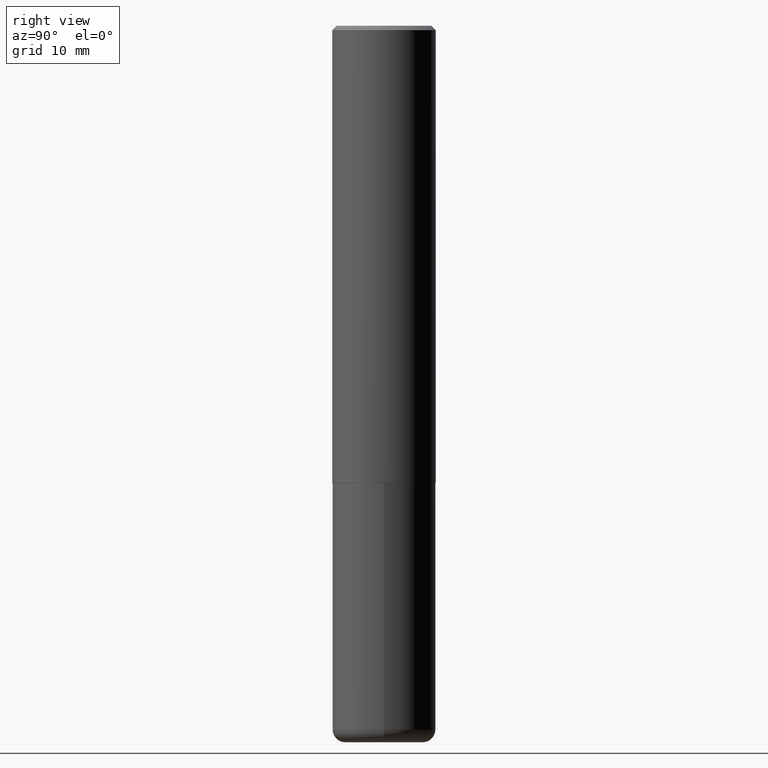
[diagram: clean part render]
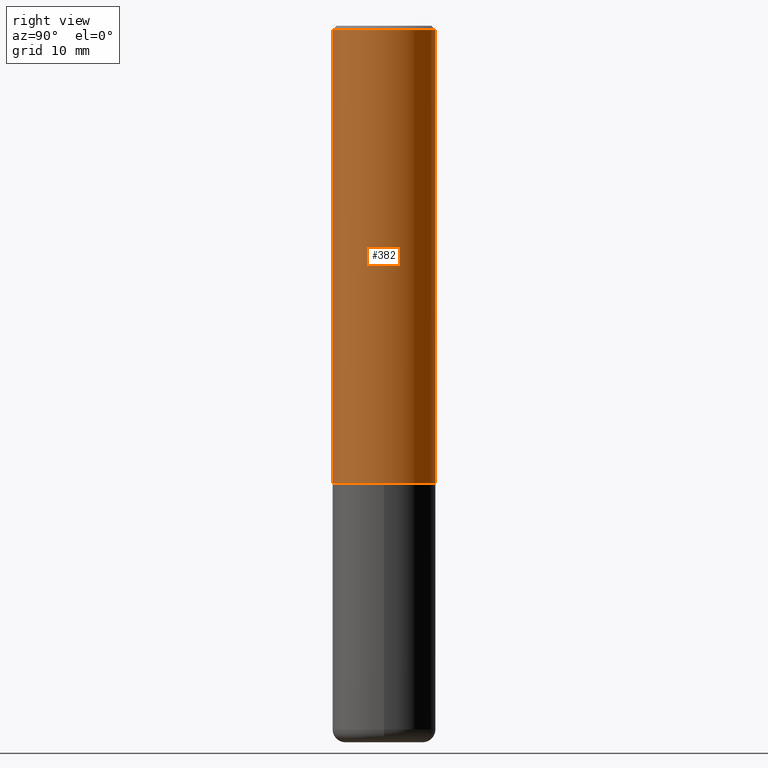
[diagram: same view with one face highlighted and labeled with its STEP entity id]
A machine part, right view. The second image highlights one B-rep face of the part: STEP entity #382.
In plain terms, the highlighted cylindrical surface (partial cylindrical patch) has radius 5.9995 mm, axis along (-0, 0, 1).
Its self-contained STEP definition (entity closure, byte-faithful):
#19 = CIRCLE ( 'NONE', #142, 0.2362000000000002431 ) ;
#20 = AXIS2_PLACEMENT_3D ( 'NONE', #274, #311, #30 ) ;
#29 = CYLINDRICAL_SURFACE ( 'NONE', #20, 0.2362000000000001321 ) ;
#30 = DIRECTION ( 'NONE',  ( -6.982962677686265922E-15, -1.000000000000000000, 3.491916598680790641E-15 ) ) ;
#37 = EDGE_CURVE ( 'NONE', #257, #170, #317, .T. ) ;
#57 = ORIENTED_EDGE ( 'NONE', *, *, #37, .F. ) ;
#68 = DIRECTION ( 'NONE',  ( -2.445164865864999768E-29, 3.491916598680790247E-15, 1.000000000000000000 ) ) ;
#92 = DIRECTION ( 'NONE',  ( -2.445164865864999768E-29, 3.491916598680790247E-15, 1.000000000000000000 ) ) ;
#93 = CARTESIAN_POINT ( 'NONE',  ( 1.649375784469496525E-15, 0.2361999999999999378, -0.02000000000000087472 ) ) ;
#142 = AXIS2_PLACEMENT_3D ( 'NONE', #281, #147, #205 ) ;
#147 = DIRECTION ( 'NONE',  ( -2.445164865864999768E-29, 3.491916598680790247E-15, 1.000000000000000000 ) ) ;
#158 = VECTOR ( 'NONE', #92, 39.37007874015748143 ) ;
#161 = CARTESIAN_POINT ( 'NONE',  ( -1.620449627073635079E-15, -0.2362000000000000766, -0.01999999999999922673 ) ) ;
#164 = EDGE_CURVE ( 'NONE', #170, #337, #302, .T. ) ;
#170 = VERTEX_POINT ( 'NONE', #161 ) ;
#172 = FACE_OUTER_BOUND ( 'NONE', #297, .T. ) ;
#186 = CARTESIAN_POINT ( 'NONE',  ( -1.649375784469496920E-15, -0.2362000000000001321, 8.247907006084031649E-16 ) ) ;
#190 = AXIS2_PLACEMENT_3D ( 'NONE', #327, #68, #247 ) ;
#205 = DIRECTION ( 'NONE',  ( -6.982962677686265922E-15, -1.000000000000000000, 3.469747663417773452E-15 ) ) ;
#207 = CARTESIAN_POINT ( 'NONE',  ( 1.678301941865357380E-15, 0.2362000000000001321, -8.247907006084031649E-16 ) ) ;
#234 = ORIENTED_EDGE ( 'NONE', *, *, #164, .F. ) ;
#242 = LINE ( 'NONE', #207, #245 ) ;
#245 = VECTOR ( 'NONE', #313, 39.37007874015748143 ) ;
#247 = DIRECTION ( 'NONE',  ( -6.982962677686265922E-15, -1.000000000000000000, 3.487819265831411744E-15 ) ) ;
#257 = VERTEX_POINT ( 'NONE', #383 ) ;
#259 = ORIENTED_EDGE ( 'NONE', *, *, #366, .T. ) ;
#274 = CARTESIAN_POINT ( 'NONE',  ( 0.000000000000000000, 0.000000000000000000, 0.000000000000000000 ) ) ;
#281 = CARTESIAN_POINT ( 'NONE',  ( 5.099635844248043868E-29, -7.282741258208656487E-15, -2.085599999999999898 ) ) ;
#297 = EDGE_LOOP ( 'NONE', ( #409, #259, #234, #57 ) ) ;
#302 = CIRCLE ( 'NONE', #190, 0.2361999999999999933 ) ;
#311 = DIRECTION ( 'NONE',  ( -2.445164865864999768E-29, 3.491916598680790247E-15, 1.000000000000000000 ) ) ;
#313 = DIRECTION ( 'NONE',  ( -2.445164865864999768E-29, 3.491916598680790247E-15, 1.000000000000000000 ) ) ;
#316 = EDGE_CURVE ( 'NONE', #257, #372, #19, .T. ) ;
#317 = LINE ( 'NONE', #186, #158 ) ;
#327 = CARTESIAN_POINT ( 'NONE',  ( 4.890329731730012603E-31, -6.983833197361597897E-17, -0.02000000000000005246 ) ) ;
#337 = VERTEX_POINT ( 'NONE', #93 ) ;
#338 = CARTESIAN_POINT ( 'NONE',  ( 1.678301941865383610E-15, 0.2361999999999929711, -2.085600000000000787 ) ) ;
#366 = EDGE_CURVE ( 'NONE', #372, #337, #242, .T. ) ;
#372 = VERTEX_POINT ( 'NONE', #338 ) ;
#382 = ADVANCED_FACE ( 'NONE', ( #172 ), #29, .T. ) ;
#383 = CARTESIAN_POINT ( 'NONE',  ( -1.649375784469446630E-15, -0.2362000000000075151, -2.085599999999999010 ) ) ;
#409 = ORIENTED_EDGE ( 'NONE', *, *, #316, .T. ) ;